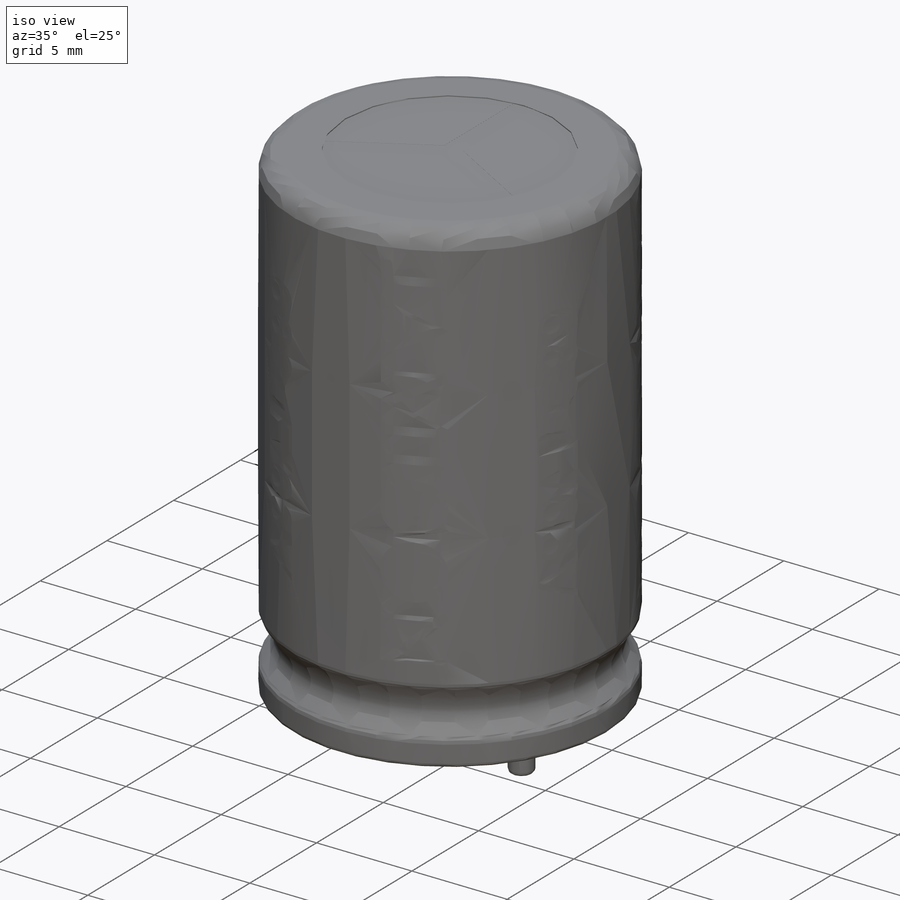
[diagram: iso view]
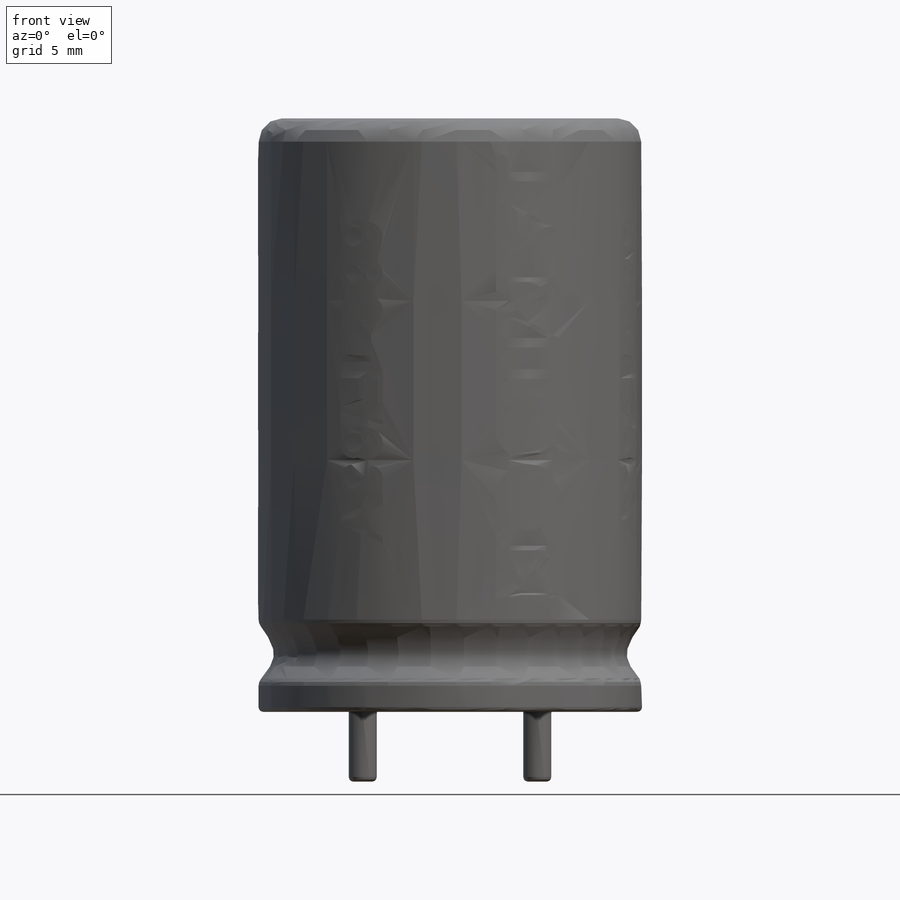
[diagram: front view]
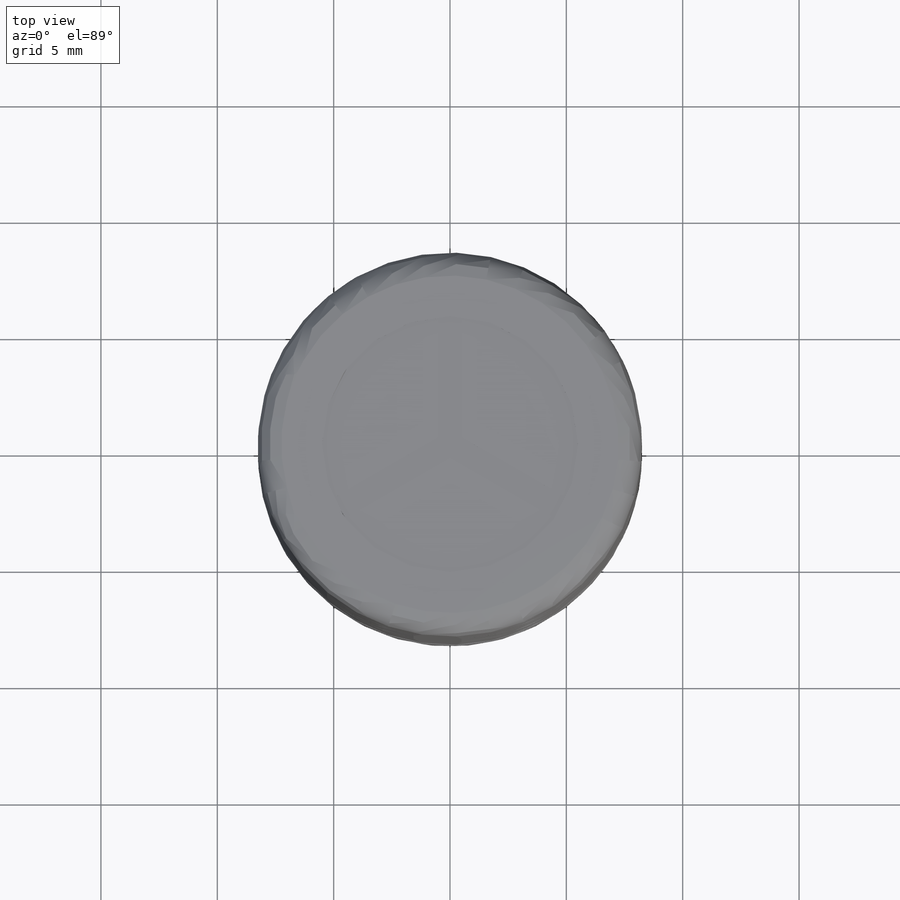
[diagram: top view]
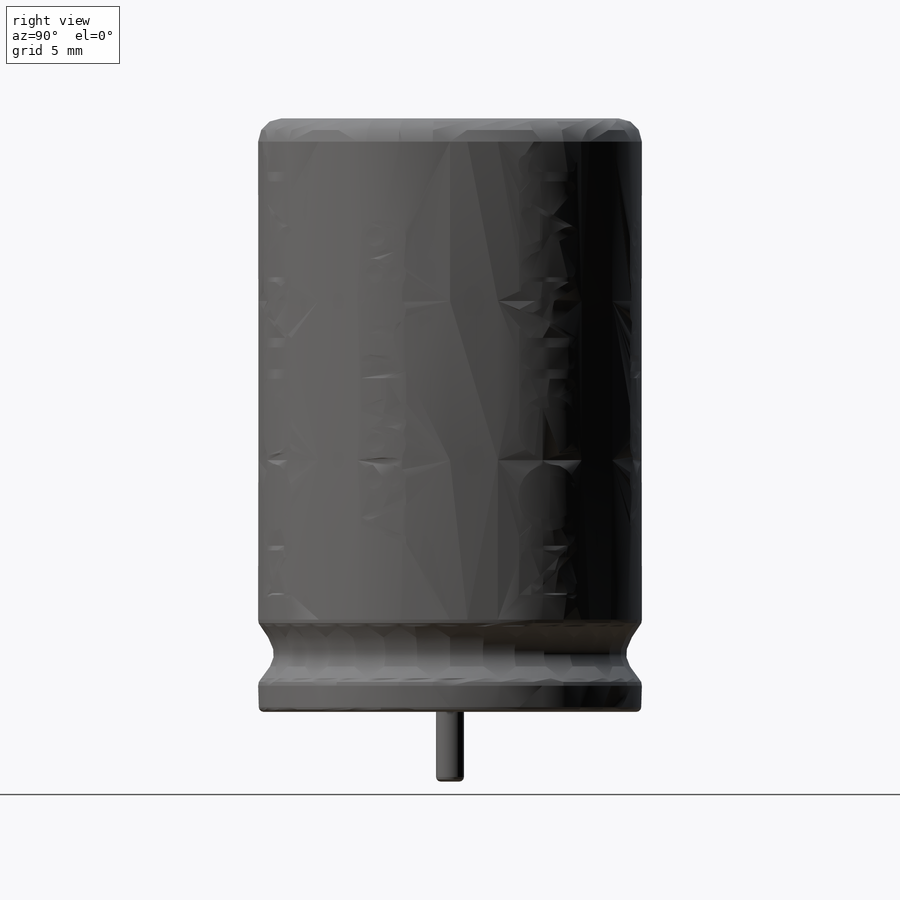
[diagram: right view]
SOLIDWORKS PART (.sldprt)
format: sldprt  version: not decoded by parser v0  size: 1,129,472 bytes
history: native  units: mm
features: sketch x8, fillet x5, plane x4, cut_extrude x2, material x1, revolve x1, extrude x1 (+12 scaffold rows collapsed)
feature tree (34):
  scaffold x12  (default folders/planes/origin — collapsed)
  material  "Material <not specified>"
  plane  "Спереди"
  plane  "Сверху"
  plane  "Справа"
  sketch  "Эскиз2"  dims[ВЫСОТА=25.5mm РАДИУС=8.25mm]
  revolve  "Повернуть1"  Angle=360deg
  fillet  "Скругление1"  Radius=0.5mm
  fillet  "Скругление2"  Radius=0.5mm
  sketch  "Эскиз3"  dims[D3=1.2mm D4=1.2mm D1=7.5mm D2=3.75mm]
  extrude  "Вытянуть1"  Depth=3mm
  fillet  "Скругление3"  Radius=1mm
  sketch  "Эскиз4"  dims[D1=11.0mm]
  cut_extrude  "Вытянуть2"  Depth=0.05mm
  sketch  "Эскиз5"  dims[c1.D1=5.5mm c2.D1=120.0deg c2.D2=~4.096592mm c3.D2=120.0deg c3.D3=0.5mm c3.D4=0.5mm]
  cut_extrude  "Вытянуть3"  Depth=0.005mm
  plane  "Плоскость1"  Offset=11mm
  sketch  "Эскиз9"  dims[D1=7.0mm]
  sketch  "Эскиз10"  dims[D1=6.0mm D2=3.0mm]
  sketch  "Эскиз11"  dims[c1.D1=0.8mm c2.D1=90.0deg c3.D1=0.8mm c3.D2=0.4mm c4.D1=0.01mm]
  fillet  "Скругление4"  Radius=0.2mm
  fillet  "Скругление5"  Radius=0.2mm
  sketch  "Эскиз12"
decode coverage: 16 of 17 modeling features carry decoded parameters
note: ~ marks probable driven/reference dimensions
note: suppression state not decoded; provenance and decode notes live in map.json
